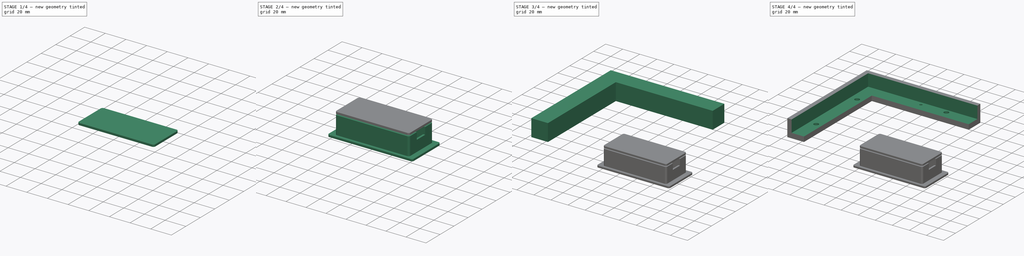
[diagram: build sequence overview — one tinted view per stage of 4, left to right]
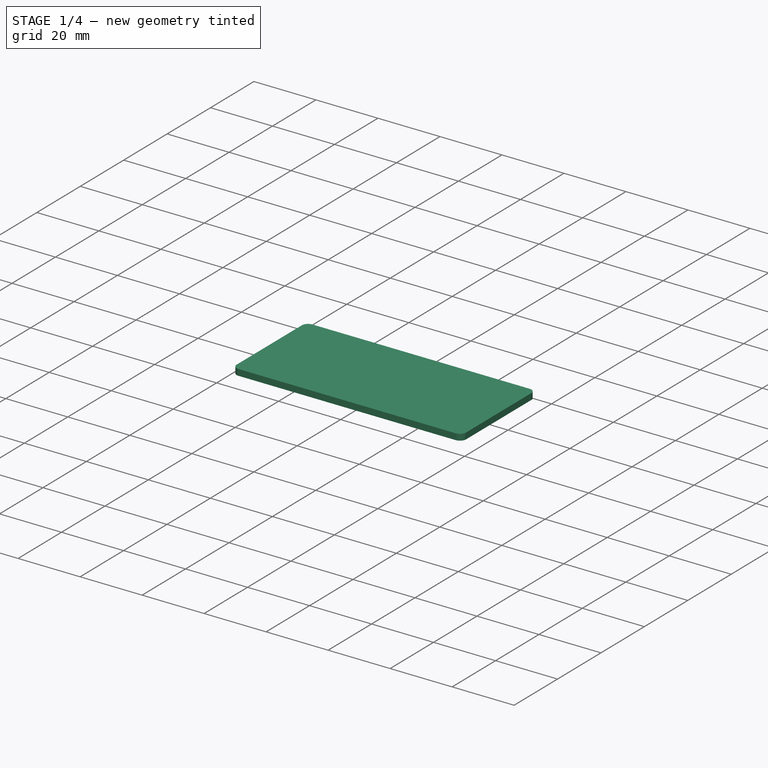
[diagram: stage 1 of 4 — iso view after this stage's code; geometry added in this stage tinted green]
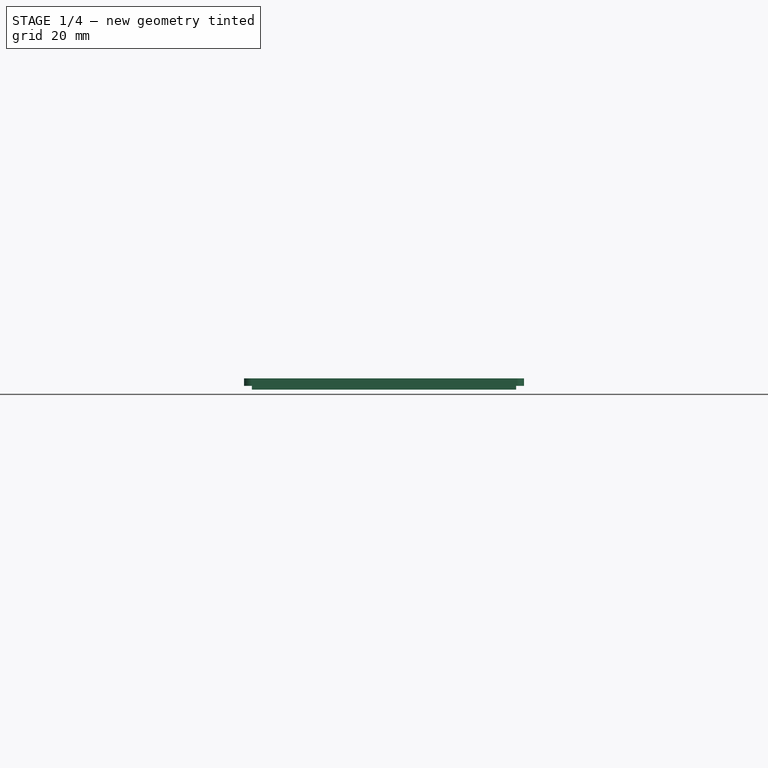
[diagram: stage 1 of 4 — front view after this stage's code; geometry added in this stage tinted green]
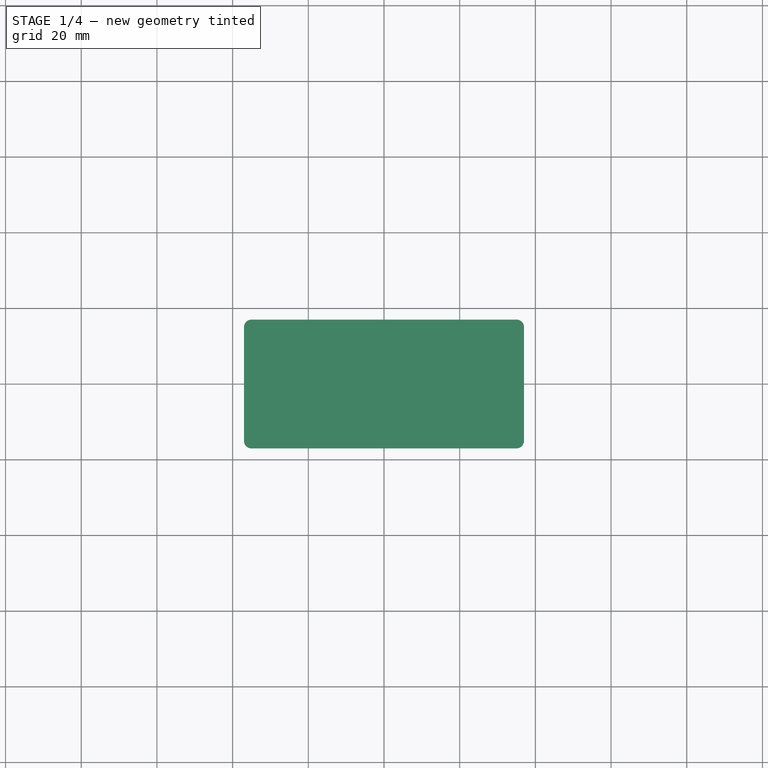
[diagram: stage 1 of 4 — top view after this stage's code; geometry added in this stage tinted green]
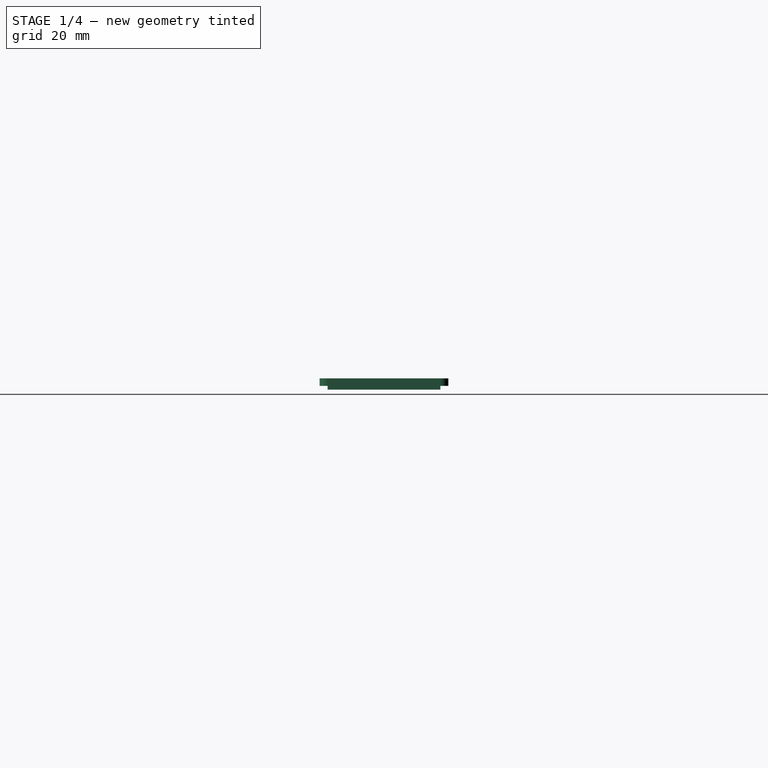
[diagram: stage 1 of 4 — right view after this stage's code; geometry added in this stage tinted green]
FCSTD DOCUMENT  (FreeCAD 0.21R33771 (Git))
Label: case
License: All rights reserved
LicenseURL: https://en.wikipedia.org/wiki/All_rights_reserved
objects: Sketcher::SketchObject×12, PartDesign::Pad×5, PartDesign::Body×4, PartDesign::Pocket×3, PartDesign::Hole×3, PartDesign::Mirrored×2, Spreadsheet::Sheet×1, PartDesign::MultiTransform×1
note: 41 computed .brp shape members not serialized (recipe doc carries the construction recipe); baked Part::Feature solids carry a one-line shape summary decoded from their .brp

FEATURE [PartDesign::Body] Body001  label="Center bracket"
  Group = -> [Sketch004,Sketch005,Pad001,Hole002,MultiTransform001,Mirrored002,Mirrored003]
  Origin = -> Origin001
  Tip = -> MultiTransform001
FEATURE [Sketcher::SketchObject] Sketch006
  FullyConstrained = true
  MapMode = 5
  Support = -> [XY_Plane002]
  expr: Constraints[14] = 70 mm + Spreadsheet.B2 * 2
  expr: Constraints[17] = 30 mm + Spreadsheet.B2 * 2
  sketch-geometry (8):
    g0: LineSegment StartX=-35 StartY=17 StartZ=0 EndX=35 EndY=17 EndZ=0
    g1: LineSegment StartX=37 StartY=15 StartZ=0 EndX=37 EndY=-15 EndZ=0
    g2: LineSegment StartX=35 StartY=-17 StartZ=0 EndX=-35 EndY=-17 EndZ=0
    g3: LineSegment StartX=-37 StartY=-15 StartZ=0 EndX=-37 EndY=15 EndZ=0
    g4: ArcOfCircle CenterX=-35 CenterY=15 CenterZ=0 NormalX=0 NormalY=0 NormalZ=1 AngleXU=0 Radius=2 StartAngle=1.5708 EndAngle=3.14159
    g5: ArcOfCircle CenterX=35 CenterY=15 CenterZ=0 NormalX=0 NormalY=0 NormalZ=1 AngleXU=0 Radius=2 StartAngle=0 EndAngle=1.5708
    g6: ArcOfCircle CenterX=-35 CenterY=-15 CenterZ=0 NormalX=0 NormalY=0 NormalZ=1 AngleXU=0 Radius=2 StartAngle=3.14159 EndAngle=4.71239
    g7: ArcOfCircle CenterX=35 CenterY=-15 CenterZ=0 NormalX=0 NormalY=0 NormalZ=1 AngleXU=0 Radius=2 StartAngle=4.71239 EndAngle=6.28319
  constraints (19):
    c: Horizontal(g0)
    c: Horizontal(g2)
    c: Vertical(g1)
    c: Vertical(g3)
    c: Tangent(g0,g4) = 1.5708
    c: Tangent(g3,g4) = 1.5708
    c: Tangent(g0,g5) = 1.5708
    c: Tangent(g1,g5) = 1.5708
    c: Tangent(g3,g6) = 1.5708
    c: Tangent(g2,g6) = 1.5708
    c: Tangent(g2,g7) = 1.5708
    c: Tangent(g1,g7) = 1.5708
    c: Equal(g5,g7)
    c: Radius(g5) = 2
    c: DistanceX(g3,g1) = 74
    c: Equal(g4,g6)
    c: Equal(g4,g7)
    c: DistanceY(g2,g0) = 34
    c: Symmetric(g4,g7,g-1)
FEATURE [Sketcher::SketchObject] Sketch007
  AttachmentOffset = pos=(0,0,20) rot=(0,0,1;0rad)
  FullyConstrained = true
  MapMode = 5
  Placement = pos=(0,0,20) rot=(0,0,1;0rad)
  Support = -> [XY_Plane002]
  expr: .AttachmentOffset.Base.z = Pad002.Length
  expr: Constraints[10] = 70 mm
  expr: Constraints[9] = 30 mm
  sketch-geometry (4):
    g0: LineSegment StartX=-35 StartY=15 StartZ=0 EndX=35 EndY=15 EndZ=0
    g1: LineSegment StartX=35 StartY=15 StartZ=0 EndX=35 EndY=-15 EndZ=0
    g2: LineSegment StartX=35 StartY=-15 StartZ=0 EndX=-35 EndY=-15 EndZ=0
    g3: LineSegment StartX=-35 StartY=-15 StartZ=0 EndX=-35 EndY=15 EndZ=0
  constraints (11):
    c: Coincident(g0,g1)
    c: Coincident(g1,g2)
    c: Coincident(g2,g3)
    c: Coincident(g3,g0)
    c: Horizontal(g0)
    c: Horizontal(g2)
    c: Vertical(g1)
    c: Vertical(g3)
    c: Symmetric(g1,g0,g-1)
    c: DistanceY(g1,g1) = 30
    c: DistanceX(g0,g0) = 70
FEATURE [PartDesign::Pad] Pad002
  Direction = (0,0,1)
  Length = 20
  Length2 = 10
  Profile = -> Sketch006
  ReferenceAxis = -> Sketch006 [N_Axis]
  Type = 0
FEATURE [PartDesign::Pad] Pad003  label="Inner"
  Direction = (0,0,1)
  Length = 1
  Length2 = 10
  Profile = -> Sketch009
  ReferenceAxis = -> Sketch009 [N_Axis]
  Type = 0
FEATURE [PartDesign::Pad] Pad004  label="Outer"
  BaseFeature = -> Pad003
  Direction = (0,0,1)
  Length = 2
  Length2 = 10
  Profile = -> Sketch008
  ReferenceAxis = -> Sketch008 [N_Axis]
  Type = 0
FEATURE [PartDesign::Body] Body003  label="Lid"
  Group = -> [Sketch008,Sketch009,Pad003,Pad004]
  Origin = -> Origin003
  Tip = -> Pad004
FEATURE [Sketcher::SketchObject] Sketch011
  ExternalGeometry = -> [Sketch007]
  FullyConstrained = false
  MapMode = 5
  Support = -> [XY_Plane002]
  sketch-geometry (1):
    g0: Circle CenterX=-33 CenterY=13 CenterZ=0 NormalX=0 NormalY=0 NormalZ=1 AngleXU=0 Radius=1.83457
  constraints (2):
    c: DistanceY(g0,g-3) = 2
    c: DistanceX(g-3,g0) = 2
FEATURE [PartDesign::Body] Body002  label="Pico Case"
  Group = -> [Sketch006,Sketch007,Pad002,Pocket001,Sketch010,Pocket002,Sketch011]
  Origin = -> Origin002
  Tip = -> Pocket002
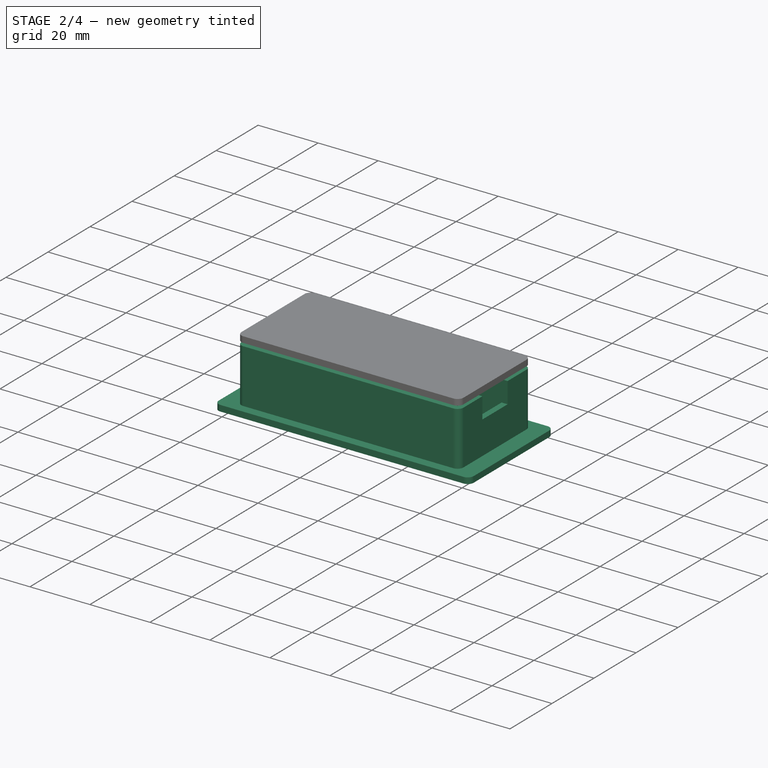
[diagram: stage 2 of 4 — iso view after this stage's code; geometry added in this stage tinted green]
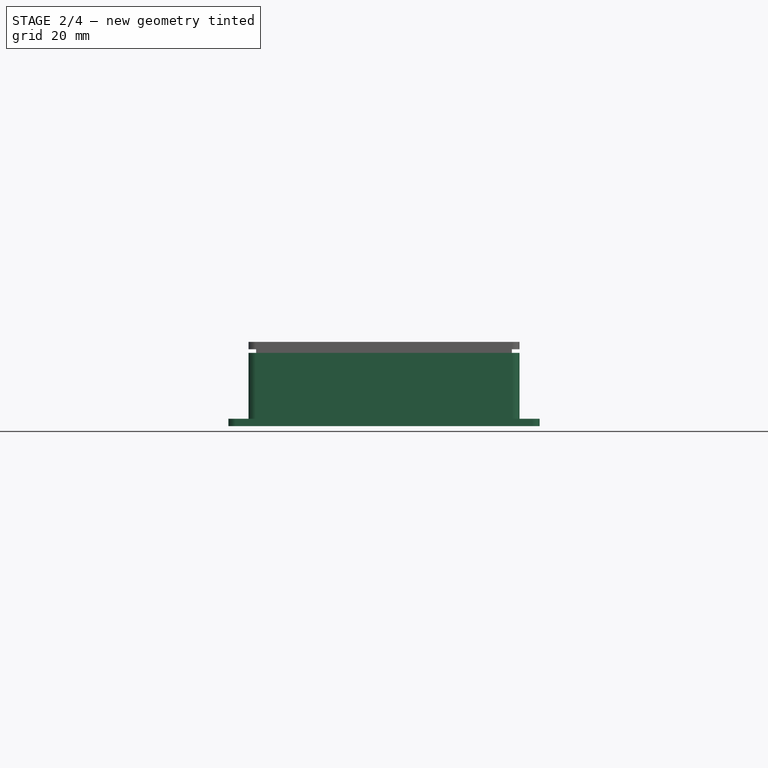
[diagram: stage 2 of 4 — front view after this stage's code; geometry added in this stage tinted green]
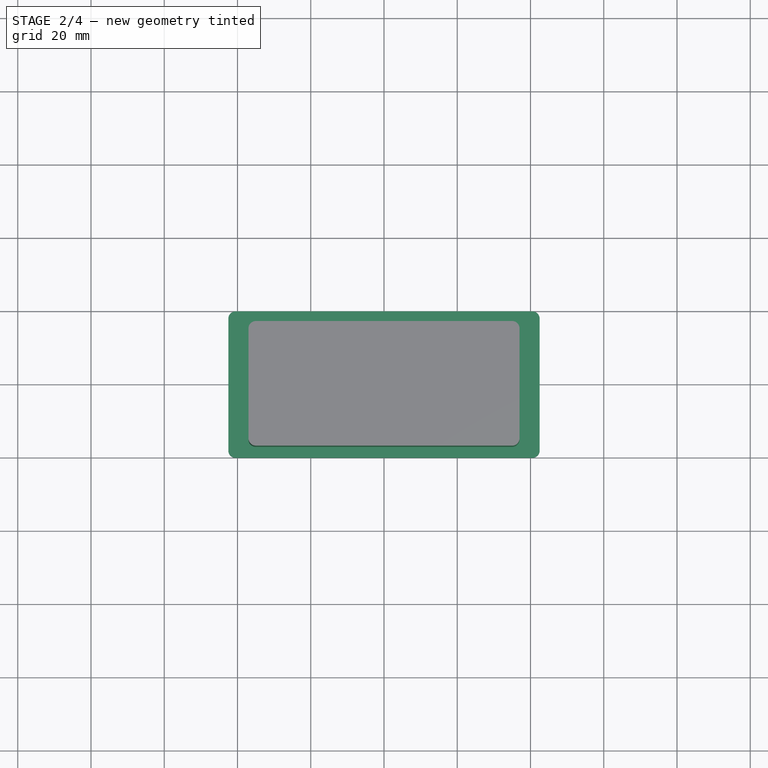
[diagram: stage 2 of 4 — top view after this stage's code; geometry added in this stage tinted green]
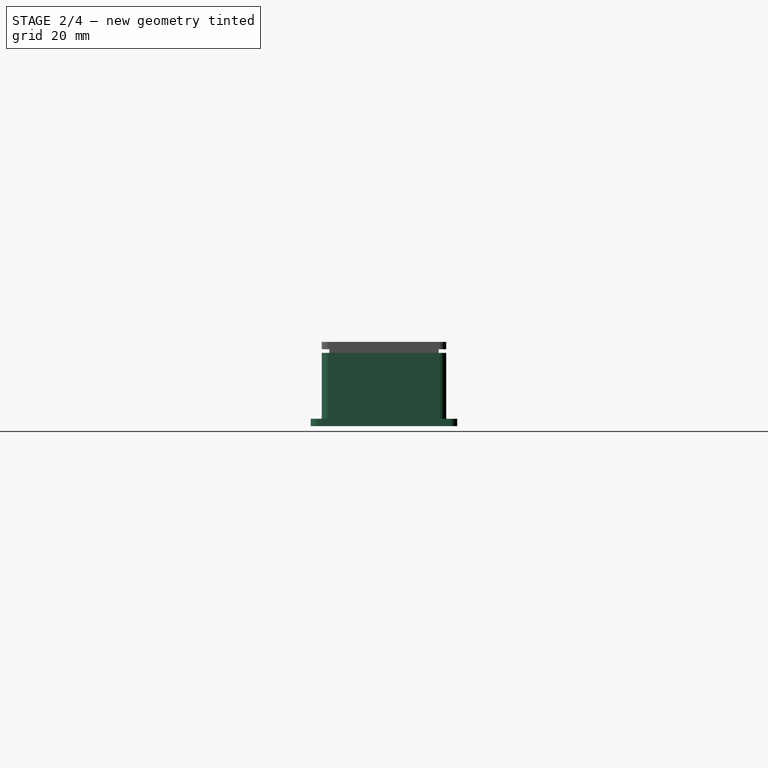
[diagram: stage 2 of 4 — right view after this stage's code; geometry added in this stage tinted green]
FEATURE [PartDesign::Body] Body  label="Bezel"
  Group = -> [Sketch,Sketch001,Pad,Pocket,Sketch002,Hole,Sketch003,Hole001]
  Origin = -> Origin
  Tip = -> Hole001
FEATURE [Sketcher::SketchObject] Sketch004
  FullyConstrained = true
  MapMode = 5
  Support = -> [XY_Plane001]
  sketch-geometry (8):
    g0: LineSegment StartX=-40.5 StartY=20 StartZ=0 EndX=40.5 EndY=20 EndZ=0
    g1: LineSegment StartX=42.5 StartY=18 StartZ=0 EndX=42.5 EndY=-18 EndZ=0
    g2: LineSegment StartX=40.5 StartY=-20 StartZ=0 EndX=-40.5 EndY=-20 EndZ=0
    g3: LineSegment StartX=-42.5 StartY=-18 StartZ=0 EndX=-42.5 EndY=18 EndZ=0
    g4: ArcOfCircle CenterX=-40.5 CenterY=18 CenterZ=0 NormalX=0 NormalY=0 NormalZ=1 AngleXU=0 Radius=2 StartAngle=1.5708 EndAngle=3.14159
    g5: ArcOfCircle CenterX=-40.5 CenterY=-18 CenterZ=0 NormalX=0 NormalY=0 NormalZ=1 AngleXU=0 Radius=2 StartAngle=3.14159 EndAngle=4.71239
    g6: ArcOfCircle CenterX=40.5 CenterY=-18 CenterZ=0 NormalX=0 NormalY=0 NormalZ=1 AngleXU=0 Radius=2 StartAngle=4.71239 EndAngle=6.28319
    g7: ArcOfCircle CenterX=40.5 CenterY=18 CenterZ=0 NormalX=0 NormalY=0 NormalZ=1 AngleXU=0 Radius=2 StartAngle=-6.8683e-12 EndAngle=1.5708
  constraints (19):
    c: Horizontal(g0)
    c: Horizontal(g2)
    c: Vertical(g1)
    c: Vertical(g3)
    c: Tangent(g0,g4) = 1.5708
    c: Tangent(g3,g4) = 1.5708
    c: Tangent(g3,g5) = 1.5708
    c: Tangent(g2,g5) = 1.5708
    c: Tangent(g2,g6) = 1.5708
    c: Tangent(g1,g6) = 1.5708
    c: Tangent(g1,g7) = 1.5708
    c: Tangent(g0,g7) = 1.5708
    c: Equal(g4,g5)
    c: Equal(g5,g6)
    c: Equal(g6,g7)
    c: Radius(g7) = 2
    c: DistanceX(g3,g1) = 85
    c: DistanceY(g2,g0) = 40
    c: Symmetric(g4,g6,g-1)
FEATURE [Sketcher::SketchObject] Sketch005
  AttachmentOffset = pos=(0,0,2) rot=(0,0,1;0rad)
  ExternalGeometry = -> [Sketch004]
  FullyConstrained = true
  MapMode = 5
  Placement = pos=(0,0,2) rot=(0,0,1;0rad)
  Support = -> [XY_Plane001]
  expr: .AttachmentOffset.Base.z = Pad001.Length
  sketch-geometry (1):
    g0: Circle CenterX=-33 CenterY=9.75 CenterZ=0 NormalX=0 NormalY=0 NormalZ=1 AngleXU=0 Radius=2.5
  constraints (3):
    c: DistanceX(g0,g-1) = 33
    c: Radius(g0) = 2.5
    c: DistanceY(g-1,g0) = 9.75
FEATURE [PartDesign::Pad] Pad001
  Direction = (0,0,1)
  Length = 2
  Length2 = 10
  Profile = -> Sketch004
  ReferenceAxis = -> Sketch004 [N_Axis]
  Type = 0
FEATURE [PartDesign::Pocket] Pocket001
  BaseFeature = -> Pad002
  Direction = (0,0,-1)
  Length = 18
  Length2 = 5
  Profile = -> Sketch007
  ReferenceAxis = -> Sketch007 [N_Axis]
  Type = 0
  expr: Length = Pad002.Length - Spreadsheet.B2
FEATURE [Sketcher::SketchObject] Sketch008
  AttachmentOffset = pos=(0,0,21) rot=(0,0,1;0rad)
  FullyConstrained = true
  MapMode = 5
  Placement = pos=(0,0,21) rot=(0,0,1;0rad)
  Support = -> [XY_Plane003]
  expr: .AttachmentOffset.Base.z = Pad002.Length + Pad003.Length
  expr: Constraints[14] = 70 mm + Spreadsheet.B2 * 2
  expr: Constraints[17] = 30 mm + Spreadsheet.B2 * 2
  sketch-geometry (8):
    g0: LineSegment StartX=-35 StartY=17 StartZ=0 EndX=35 EndY=17 EndZ=0
    g1: LineSegment StartX=37 StartY=15 StartZ=0 EndX=37 EndY=-15 EndZ=0
    g2: LineSegment StartX=35 StartY=-17 StartZ=0 EndX=-35 EndY=-17 EndZ=0
    g3: LineSegment StartX=-37 StartY=-15 StartZ=0 EndX=-37 EndY=15 EndZ=0
    g4: ArcOfCircle CenterX=-35 CenterY=15 CenterZ=0 NormalX=0 NormalY=0 NormalZ=1 AngleXU=0 Radius=2 StartAngle=1.5708 EndAngle=3.14159
    g5: ArcOfCircle CenterX=35 CenterY=15 CenterZ=0 NormalX=0 NormalY=0 NormalZ=1 AngleXU=0 Radius=2 StartAngle=0 EndAngle=1.5708
    g6: ArcOfCircle CenterX=-35 CenterY=-15 CenterZ=0 NormalX=0 NormalY=0 NormalZ=1 AngleXU=0 Radius=2 StartAngle=3.14159 EndAngle=4.71239
    g7: ArcOfCircle CenterX=35 CenterY=-15 CenterZ=0 NormalX=0 NormalY=0 NormalZ=1 AngleXU=0 Radius=2 StartAngle=4.71239 EndAngle=6.28319
  constraints (19):
    c: Horizontal(g0)
    c: Horizontal(g2)
    c: Vertical(g1)
    c: Vertical(g3)
    c: Tangent(g0,g4) = 1.5708
    c: Tangent(g3,g4) = 1.5708
    c: Tangent(g0,g5) = 1.5708
    c: Tangent(g1,g5) = 1.5708
    c: Tangent(g3,g6) = 1.5708
    c: Tangent(g2,g6) = 1.5708
    c: Tangent(g2,g7) = 1.5708
    c: Tangent(g1,g7) = 1.5708
    c: Equal(g5,g7)
    c: Radius(g5) = 2
    c: DistanceX(g3,g1) = 74
    c: Equal(g4,g6)
    c: Equal(g4,g7)
    c: DistanceY(g2,g0) = 34
    c: Symmetric(g4,g7,g-1)
FEATURE [Sketcher::SketchObject] Sketch009
  AttachmentOffset = pos=(0,0,20) rot=(0,0,1;0rad)
  FullyConstrained = true
  MapMode = 5
  Placement = pos=(0,0,20) rot=(0,0,1;0rad)
  Support = -> [XY_Plane003]
  expr: .AttachmentOffset.Base.z = Pad002.Length
  expr: Constraints[10] = 70 mm - 0.2 mm
  expr: Constraints[9] = 30 mm - 0.2 mm
  sketch-geometry (4):
    g0: LineSegment StartX=-34.9 StartY=14.9 StartZ=0 EndX=34.9 EndY=14.9 EndZ=0
    g1: LineSegment StartX=34.9 StartY=14.9 StartZ=0 EndX=34.9 EndY=-14.9 EndZ=0
    g2: LineSegment StartX=34.9 StartY=-14.9 StartZ=0 EndX=-34.9 EndY=-14.9 EndZ=0
    g3: LineSegment StartX=-34.9 StartY=-14.9 StartZ=0 EndX=-34.9 EndY=14.9 EndZ=0
  constraints (11):
    c: Coincident(g0,g1)
    c: Coincident(g1,g2)
    c: Coincident(g2,g3)
    c: Coincident(g3,g0)
    c: Horizontal(g0)
    c: Horizontal(g2)
    c: Vertical(g1)
    c: Vertical(g3)
    c: Symmetric(g1,g0,g-1)
    c: DistanceY(g1,g1) = 29.8
    c: DistanceX(g0,g0) = 69.8
FEATURE [Sketcher::SketchObject] Sketch010
  AttachmentOffset = pos=(0,0,37) rot=(0,0,1;0rad)
  FullyConstrained = true
  MapMode = 5
  Placement = pos=(37,-8.2e-15,8.2e-15) rot=(0.57735,0.57735,0.57735;2.0944rad)
  Support = -> [YZ_Plane002]
  expr: .AttachmentOffset.Base.x = 0
  expr: .AttachmentOffset.Base.z = 35 mm + Spreadsheet.B2
  sketch-geometry (4):
    g0: LineSegment StartX=-6 StartY=20 StartZ=0 EndX=6 EndY=20 EndZ=0
    g1: LineSegment StartX=6 StartY=20 StartZ=0 EndX=6 EndY=13 EndZ=0
    g2: LineSegment StartX=6 StartY=13 StartZ=0 EndX=-6 EndY=13 EndZ=0
    g3: LineSegment StartX=-6 StartY=13 StartZ=0 EndX=-6 EndY=20 EndZ=0
  constraints (12):
    c: Coincident(g0,g1)
    c: Coincident(g1,g2)
    c: Coincident(g2,g3)
    c: Coincident(g3,g0)
    c: Horizontal(g0)
    c: Horizontal(g2)
    c: Vertical(g1)
    c: Vertical(g3)
    c: DistanceY(g-1,g2) = 13
    c: DistanceY(g2,g0) = 7
    c: DistanceX(g0,g0) = 12
    c: DistanceX(g2,g-1) = 6
FEATURE [PartDesign::Pocket] Pocket002
  BaseFeature = -> Pocket001
  Direction = (-1,2e-16,-3e-16)
  Length = 5
  Length2 = 5
  Profile = -> Sketch010
  ReferenceAxis = -> Sketch010 [N_Axis]
  Type = 0
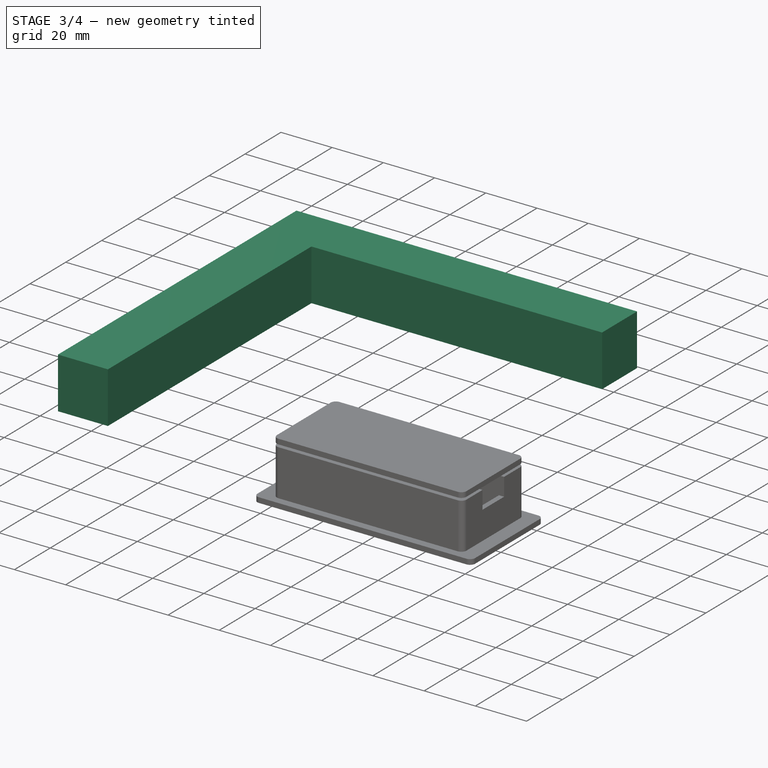
[diagram: stage 3 of 4 — iso view after this stage's code; geometry added in this stage tinted green]
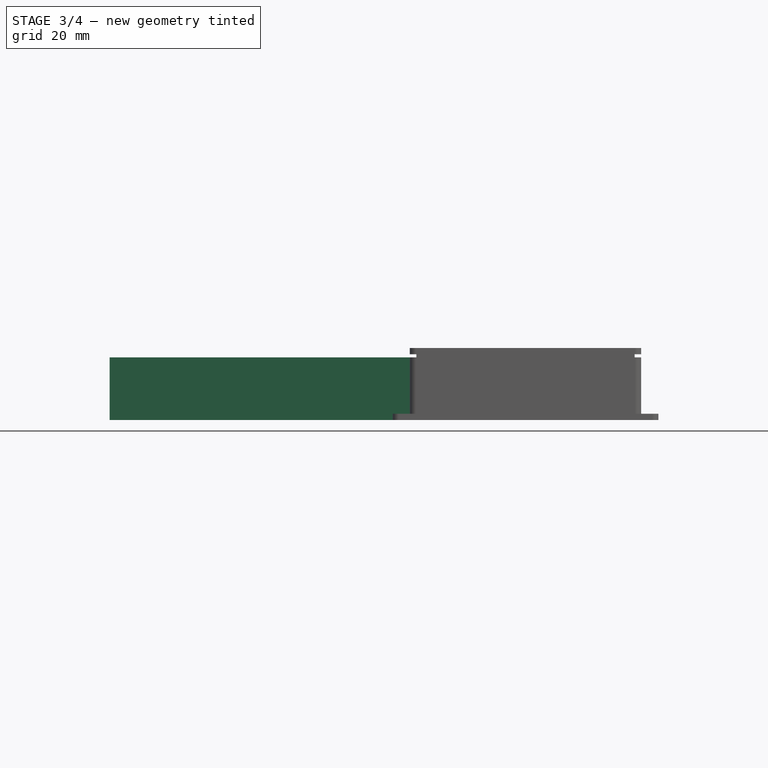
[diagram: stage 3 of 4 — front view after this stage's code; geometry added in this stage tinted green]
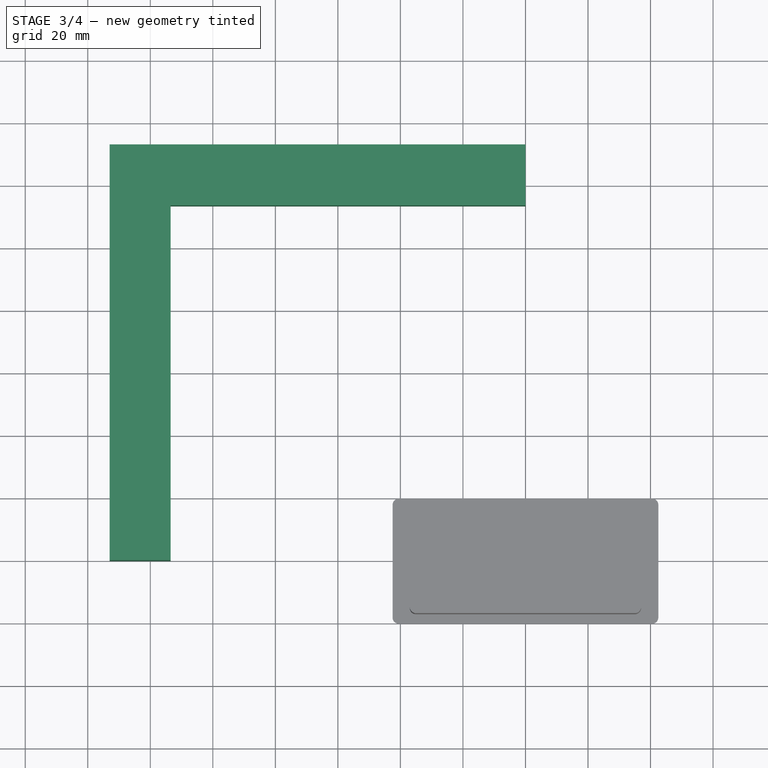
[diagram: stage 3 of 4 — top view after this stage's code; geometry added in this stage tinted green]
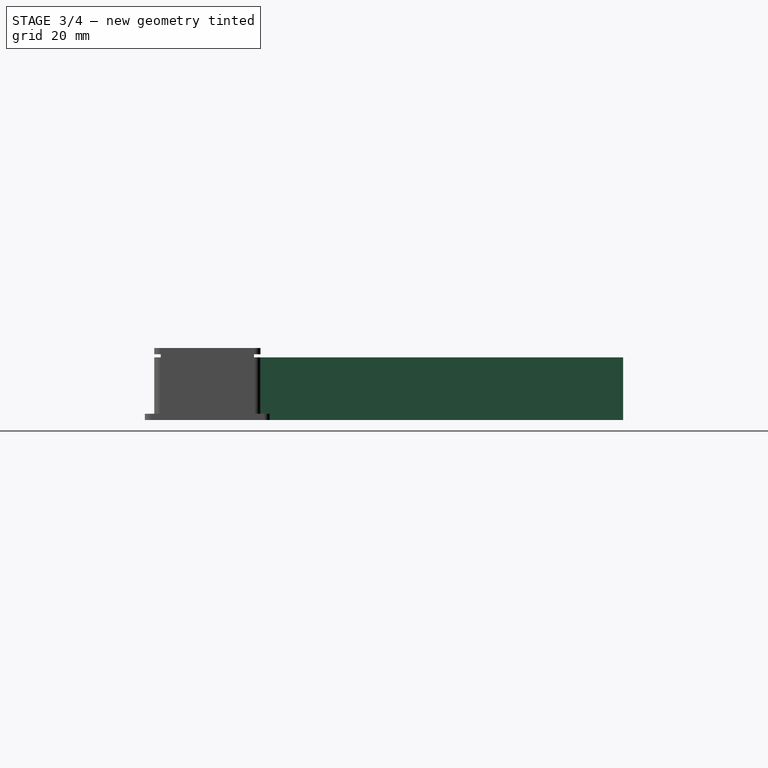
[diagram: stage 3 of 4 — right view after this stage's code; geometry added in this stage tinted green]
FEATURE [Sketcher::SketchObject] Sketch001
  FullyConstrained = true
  MapMode = 5
  Support = -> [XY_Plane]
  expr: Constraints[12] = 128 mm + Spreadsheet.B1
  expr: Constraints[13] = 128 mm + Spreadsheet.B1
  expr: Constraints[14] = 14.5 mm + Spreadsheet.B1
  expr: Constraints[15] = 14.5 mm + Spreadsheet.B1
  sketch-geometry (7):
    g0: LineSegment StartX=-133 StartY=133 StartZ=0 EndX=0 EndY=133 EndZ=0
    g1: LineSegment StartX=-113.5 StartY=113.5 StartZ=0 EndX=-113.5 EndY=2.84e-14 EndZ=0
    g2: LineSegment StartX=-113.5 StartY=2.84e-14 StartZ=0 EndX=-133 EndY=2.84e-14 EndZ=0
    g3: LineSegment StartX=-133 StartY=2.84e-14 StartZ=0 EndX=-133 EndY=133 EndZ=0
    g4: LineSegment StartX=-113.5 StartY=113.5 StartZ=0 EndX=0 EndY=113.5 EndZ=0
    g5: LineSegment StartX=0 StartY=113.5 StartZ=0 EndX=0 EndY=133 EndZ=0
    g6: GeomPoint X=0 Y=7.1e-15 Z=0
  constraints (19):
    c: Coincident(g1,g2)
    c: Coincident(g2,g3)
    c: Coincident(g3,g0)
    c: Horizontal(g0)
    c: Horizontal(g2)
    c: Vertical(g1)
    c: Vertical(g3)
    c: Horizontal(g4)
    c: Coincident(g5,g4)
    c: Vertical(g5)
    c: Coincident(g4,g1)
    c: Coincident(g0,g5)
    c: DistanceY(g3,g3) = 133
    c: DistanceX(g0,g0) = 133
    c: DistanceX(g2,g2) = 19.5
    c: DistanceY(g5,g5) = 19.5
    c: DistanceX(g2,g6) = 133
    c: DistanceY(g6,g0) = 133
    c: Coincident(g-1,g6)
FEATURE [Sketcher::SketchObject] Sketch
  AttachmentOffset = pos=(0,0,20) rot=(0,0,1;0rad)
  ExternalGeometry = -> [Sketch001]
  FullyConstrained = true
  MapMode = 5
  Placement = pos=(0,0,20) rot=(0,0,1;0rad)
  Support = -> [XY_Plane]
  expr: .AttachmentOffset.Base.z = Pad.Length
  sketch-geometry (6):
    g0: LineSegment StartX=-128 StartY=128 StartZ=0 EndX=0 EndY=128 EndZ=0
    g1: LineSegment StartX=-113.5 StartY=113.5 StartZ=0 EndX=-113.5 EndY=1.42e-14 EndZ=0
    g2: LineSegment StartX=-113.5 StartY=1.42e-14 StartZ=0 EndX=-128 EndY=1.42e-14 EndZ=0
    g3: LineSegment StartX=-128 StartY=1.42e-14 StartZ=0 EndX=-128 EndY=128 EndZ=0
    g4: LineSegment StartX=-113.5 StartY=113.5 StartZ=0 EndX=0 EndY=113.5 EndZ=0
    g5: LineSegment StartX=0 StartY=113.5 StartZ=0 EndX=0 EndY=128 EndZ=0
  constraints (17):
    c: Coincident(g1,g2)
    c: Coincident(g2,g3)
    c: Coincident(g3,g0)
    c: Horizontal(g0)
    c: Horizontal(g2)
    c: Vertical(g1)
    c: Vertical(g3)
    c: Horizontal(g4)
    c: Coincident(g5,g4)
    c: Vertical(g5)
    c: Coincident(g4,g1)
    c: Coincident(g0,g5)
    c: DistanceY(g3,g3) = 128
    c: DistanceX(g0,g0) = 128
    c: DistanceX(g2,g2) = 14.5
    c: DistanceY(g5,g5) = 14.5
    c: Coincident(g1,g-3)
FEATURE [Spreadsheet::Sheet] Spreadsheet
  cells = A1='Bezel size; B1==5 mm; A2='Wall thickness of case; B2==2 mm
FEATURE [PartDesign::Pad] Pad
  Direction = (0,0,1)
  Length = 20
  Length2 = 10
  Profile = -> Sketch001
  ReferenceAxis = -> Sketch001 [N_Axis]
  Type = 0
FEATURE [PartDesign::Hole] Hole002
  BaseFeature = -> Pad001
  CustomThreadClearance = 0
  Depth = 25
  DepthType = 0
  Diameter = 5.5
  DrillForDepth = false
  DrillPoint = 1
  DrillPointAngle = 118
  HoleCutCountersinkAngle = 90
  HoleCutCustomValues = false
  HoleCutDepth = 0
  HoleCutDiameter = 6.1
  HoleCutType = 0
  ModelThread = false
  Profile = -> Sketch005
  Tapered = false
  TaperedAngle = 90
  ThreadClass = 0
  ThreadDepth = 25
  ThreadDepthType = 0
  ThreadDirection = 0
  ThreadFit = 0
  ThreadSize = 13
  ThreadType = 1
  Threaded = false
  UseCustomThreadClearance = false
FEATURE [PartDesign::Mirrored] Mirrored002
  MirrorPlane = -> YZ_Plane001
FEATURE [PartDesign::Mirrored] Mirrored003
  MirrorPlane = -> XZ_Plane001
FEATURE [PartDesign::MultiTransform] MultiTransform001
  BaseFeature = -> Hole002
  Originals = -> [Hole002]
  Transformations = -> [Mirrored002,Mirrored003]
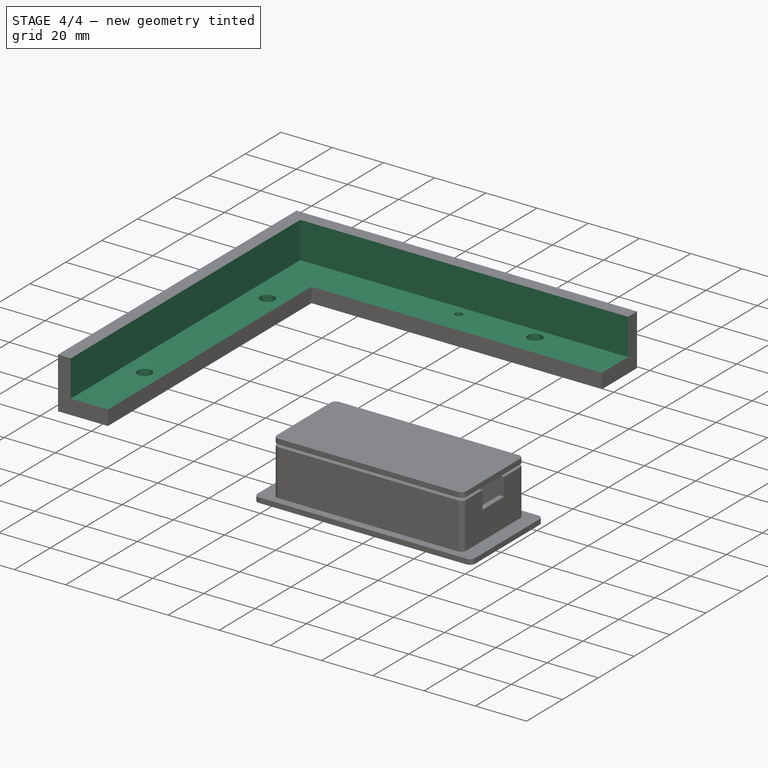
[diagram: stage 4 of 4 — iso view after this stage's code; geometry added in this stage tinted green]
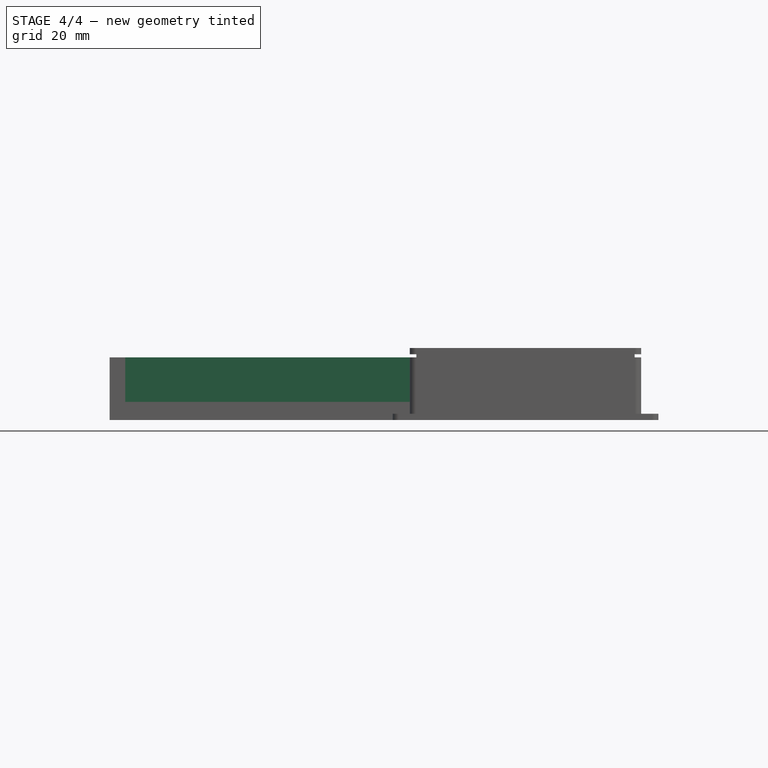
[diagram: stage 4 of 4 — front view after this stage's code; geometry added in this stage tinted green]
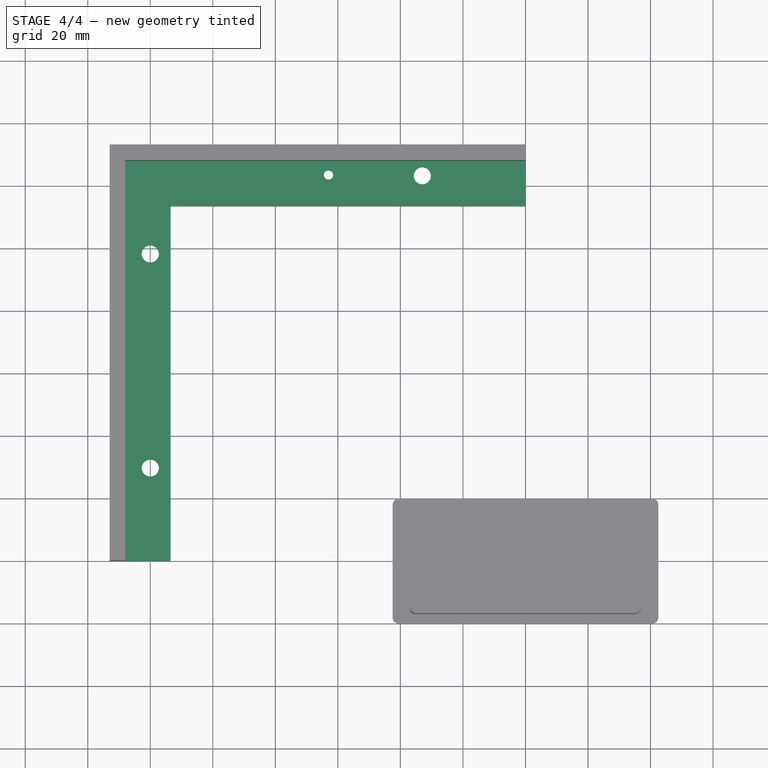
[diagram: stage 4 of 4 — top view after this stage's code; geometry added in this stage tinted green]
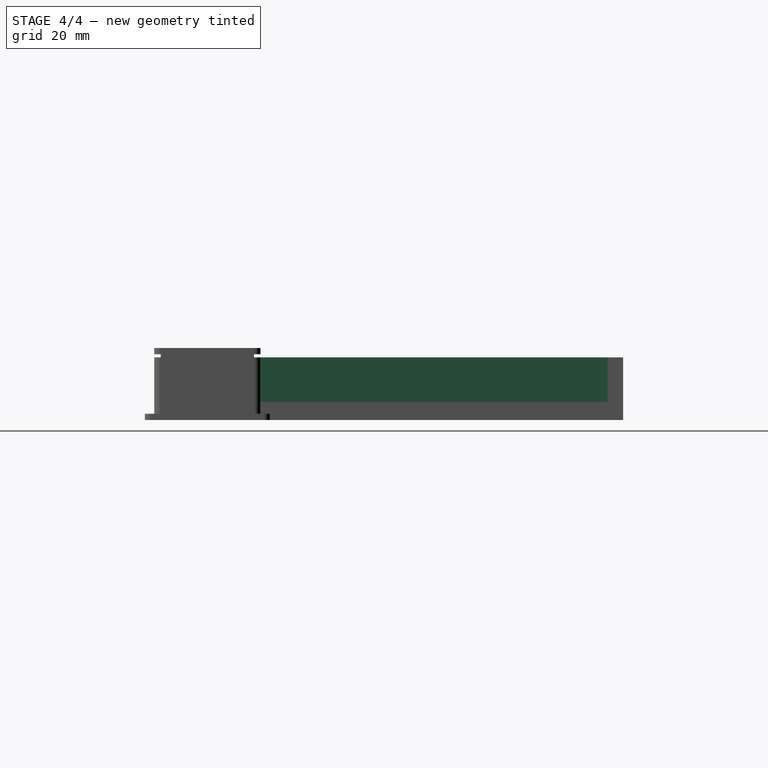
[diagram: stage 4 of 4 — right view after this stage's code; geometry added in this stage tinted green]
FEATURE [PartDesign::Pocket] Pocket
  BaseFeature = -> Pad
  Direction = (0,0,-1)
  Length = 14.2
  Length2 = 5
  Profile = -> Sketch
  ReferenceAxis = -> Sketch [N_Axis]
  Type = 0
FEATURE [Sketcher::SketchObject] Sketch002
  AttachmentOffset = pos=(0,0,5.8) rot=(0,0,1;0rad)
  ExternalGeometry = -> [Sketch,Pocket]
  FullyConstrained = true
  MapMode = 5
  Placement = pos=(0,0,5.8) rot=(0,0,1;0rad)
  Support = -> [XY_Plane]
  expr: .AttachmentOffset.Base.z = Pad.Length - Pocket.Length
  expr: Constraints[0] = 59.5 / 2
  expr: Constraints[2] = 33
  expr: Constraints[8] = 128 - 59.5 / 2
  sketch-geometry (3):
    g0: Circle CenterX=-120 CenterY=29.75 CenterZ=0 NormalX=0 NormalY=0 NormalZ=1 AngleXU=0 Radius=2.5
    g1: Circle CenterX=-33 CenterY=123.25 CenterZ=0 NormalX=0 NormalY=0 NormalZ=1 AngleXU=0 Radius=2.5
    g2: Circle CenterX=-120 CenterY=98.25 CenterZ=0 NormalX=0 NormalY=0 NormalZ=1 AngleXU=0 Radius=2.5
  constraints (9):
    c: DistanceY(g-3,g0) = 29.75
    c: DistanceX(g0,g-3) = 6.5
    c: DistanceX(g1,g-4) = 33
    c: Radius(g0) = 2.5
    c: Radius(g1) = 2.5
    c: DistanceY(g1,g-4) = 9.75
    c: Radius(g2) = 2.5
    c: DistanceX(g2,g-3) = 6.5
    c: DistanceY(g-3,g2) = 98.25
FEATURE [PartDesign::Hole] Hole
  BaseFeature = -> Pocket
  CustomThreadClearance = 0
  Depth = 25
  DepthType = 0
  Diameter = 5.5
  DrillForDepth = false
  DrillPoint = 1
  DrillPointAngle = 118
  HoleCutCountersinkAngle = 90
  HoleCutCustomValues = false
  HoleCutDepth = 0
  HoleCutDiameter = 6.1
  HoleCutType = 0
  ModelThread = false
  Profile = -> Sketch002
  Tapered = false
  TaperedAngle = 90
  ThreadClass = 0
  ThreadDepth = 25
  ThreadDepthType = 0
  ThreadDirection = 0
  ThreadFit = 0
  ThreadSize = 13
  ThreadType = 1
  Threaded = false
  UseCustomThreadClearance = false
FEATURE [Sketcher::SketchObject] Sketch003
  AttachmentOffset = pos=(0,0,5.8) rot=(0,0,1;0rad)
  ExternalGeometry = -> [Pocket]
  FullyConstrained = true
  MapMode = 5
  Placement = pos=(0,0,5.8) rot=(0,0,1;0rad)
  Support = -> [XY_Plane]
  expr: .AttachmentOffset.Base.z = Pad.Length - Pocket.Length
  sketch-geometry (1):
    g0: Circle CenterX=-63 CenterY=123.5 CenterZ=0 NormalX=0 NormalY=0 NormalZ=1 AngleXU=0 Radius=1.5
  constraints (3):
    c: DistanceX(g0,g-3) = 63
    c: Radius(g0) = 1.5
    c: DistanceY(g0,g-3) = 9.5
FEATURE [PartDesign::Hole] Hole001  label="AlignmentHole"
  BaseFeature = -> Hole
  CustomThreadClearance = 0
  Depth = 25
  DepthType = 0
  Diameter = 3
  DrillForDepth = false
  DrillPoint = 1
  DrillPointAngle = 118
  HoleCutCountersinkAngle = 90
  HoleCutCustomValues = false
  HoleCutDepth = 0
  HoleCutDiameter = 6.1
  HoleCutType = 0
  ModelThread = false
  Profile = -> Sketch003
  Tapered = false
  TaperedAngle = 90
  ThreadClass = 0
  ThreadDepth = 25
  ThreadDepthType = 0
  ThreadDirection = 0
  ThreadFit = 0
  ThreadSize = 0
  ThreadType = 0
  Threaded = false
  UseCustomThreadClearance = false
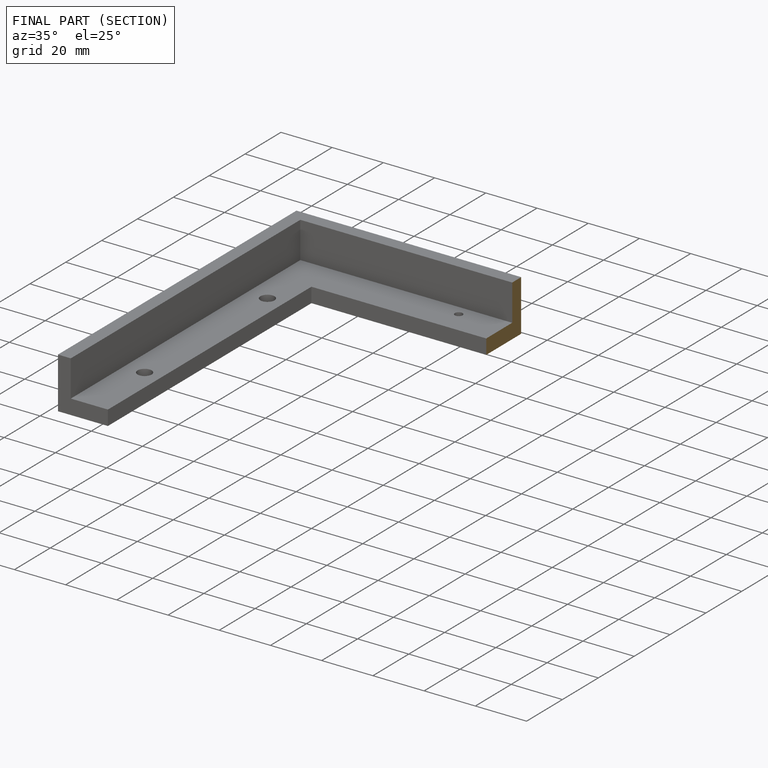
[diagram: finished part — half-section view (interior)]
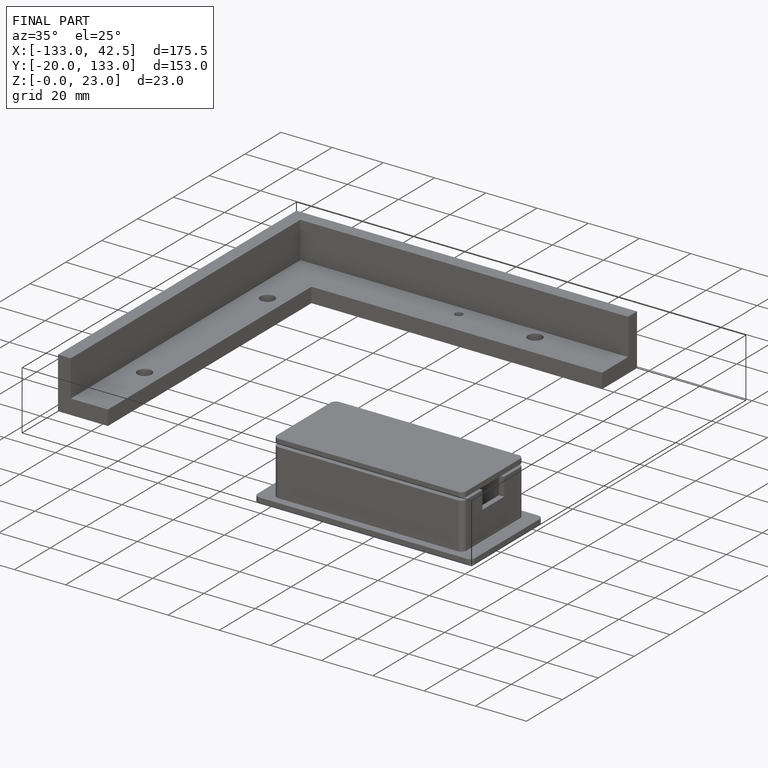
[diagram: finished part — iso view with bounding-box wireframe]
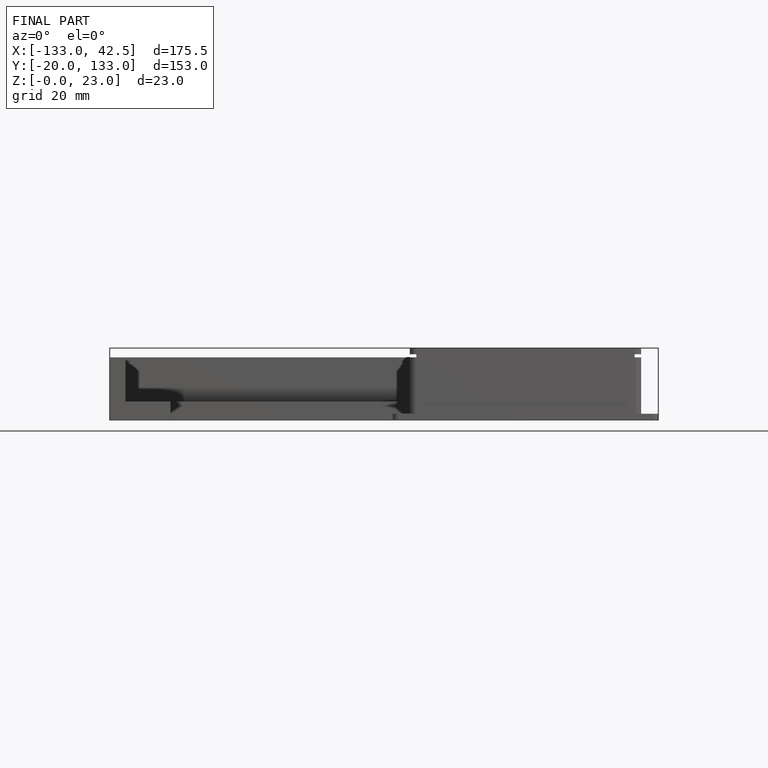
[diagram: finished part — front view with bounding-box wireframe]
